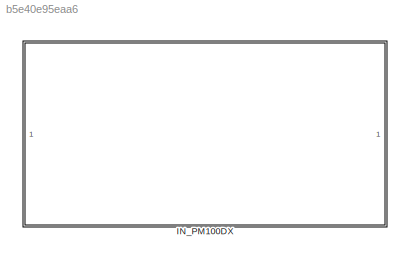
MODEL slx_b5e40e95eaa6
KIND library
CONFIG AbsTol = auto
CONFIG EnableMultiTasking = off
CONFIG FixedStep = auto
CONFIG MaxStep = auto
CONFIG MinStep = auto
CONFIG RelTol = 1e-3
CONFIG SampleTimeConstraint = Unconstrained
CONFIG SolverName = VariableStepAuto
CONFIG StartTime = 0.0
CONFIG StopTime = 10.0
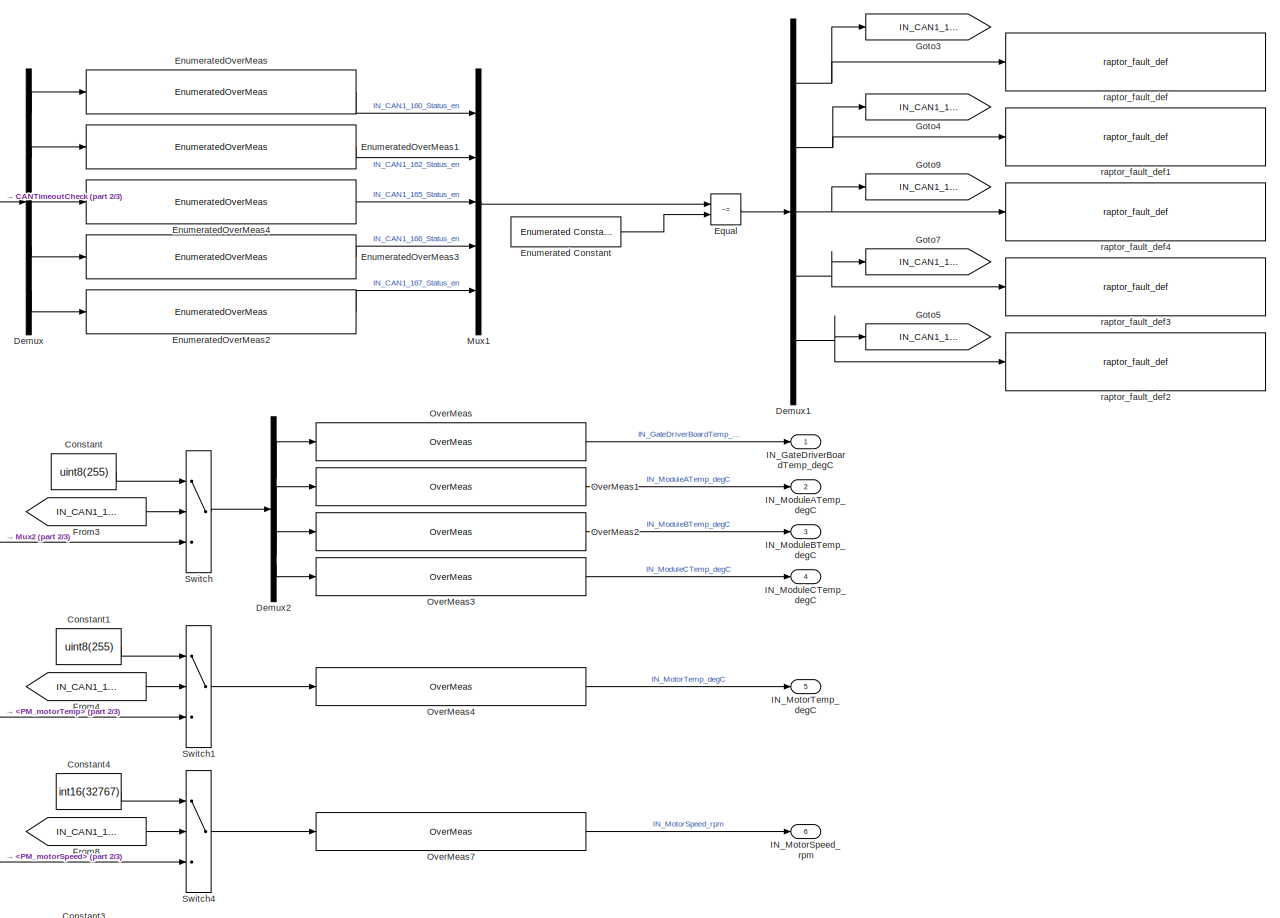
[diagram: IN_PM100DX - part 1/3, right side, full height]
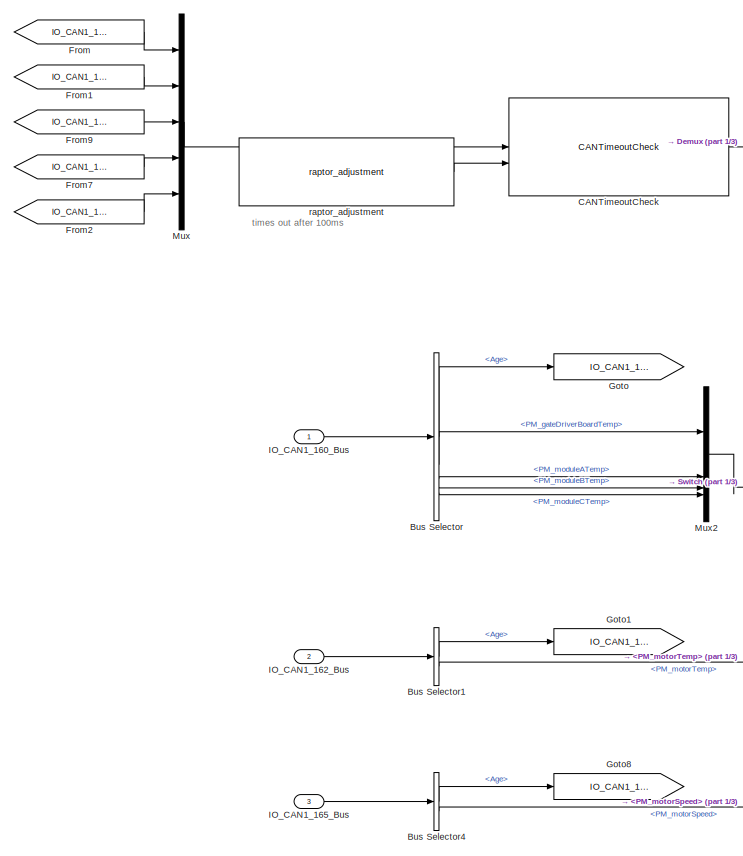
[diagram: IN_PM100DX - part 2/3, middle left region]
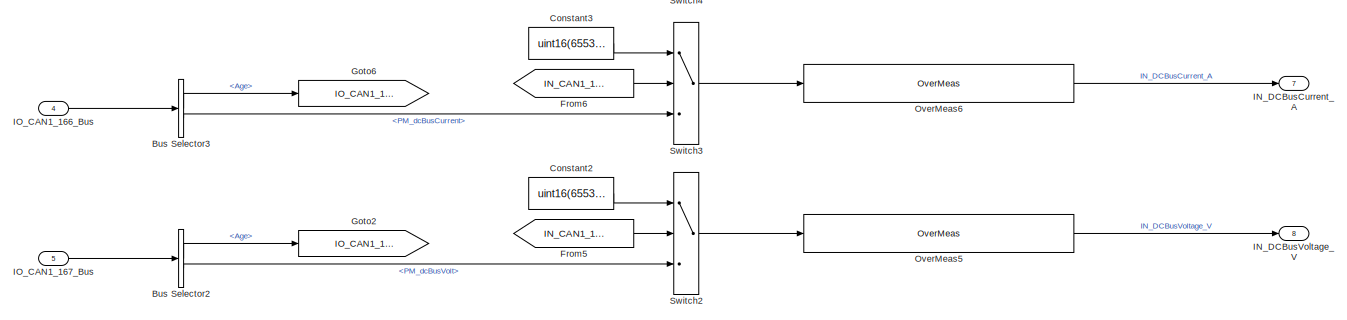
[diagram: IN_PM100DX - part 3/3, bottom center region]
BLOCK [SubSystem] IN_PM100DX
BLOCK [BusSelector] IN_PM100DX/Bus Selector
  OutputSignals = Age,PM_gateDriverBoardTemp,PM_moduleATemp,PM_moduleBTemp,PM_moduleCTemp
BLOCK [BusSelector] IN_PM100DX/Bus Selector1
  OutputSignals = Age,PM_motorTemp
BLOCK [BusSelector] IN_PM100DX/Bus Selector2
  OutputSignals = Age,PM_dcBusVolt
BLOCK [BusSelector] IN_PM100DX/Bus Selector3
  OutputSignals = Age,PM_dcBusCurrent
BLOCK [BusSelector] IN_PM100DX/Bus Selector4
  OutputSignals = Age,PM_motorSpeed
BLOCK [Reference] IN_PM100DX/CANTimeoutCheck  REF=Utilities/CANTimeoutCheck
  SourceBlock = Utilities/CANTimeoutCheck
BLOCK [Constant] IN_PM100DX/Constant
  Value = uint8(255)
BLOCK [Constant] IN_PM100DX/Constant1
  Value = uint8(255)
BLOCK [Constant] IN_PM100DX/Constant2
  Value = uint16(65536)
BLOCK [Constant] IN_PM100DX/Constant3
  Value = uint16(65536)
BLOCK [Constant] IN_PM100DX/Constant4
  Value = int16(32767)
BLOCK [Demux] IN_PM100DX/Demux
  Outputs = 5
BLOCK [Demux] IN_PM100DX/Demux1
  Outputs = 5
BLOCK [Demux] IN_PM100DX/Demux2
BLOCK [Reference] IN_PM100DX/Enumerated Constant  REF=simulink/Sources/Enumerated
Constant
  SourceBlock = simulink/Sources/Enumerated\nConstant
  SourceType = Enumerated Constant
BLOCK [Reference] IN_PM100DX/EnumeratedOverMeas  REF=Utilities/EnumeratedOverMeas
  SourceBlock = Utilities/EnumeratedOverMeas
BLOCK [Reference] IN_PM100DX/EnumeratedOverMeas1  REF=Utilities/EnumeratedOverMeas
  SourceBlock = Utilities/EnumeratedOverMeas
BLOCK [Reference] IN_PM100DX/EnumeratedOverMeas2  REF=Utilities/EnumeratedOverMeas
  SourceBlock = Utilities/EnumeratedOverMeas
BLOCK [Reference] IN_PM100DX/EnumeratedOverMeas3  REF=Utilities/EnumeratedOverMeas
  SourceBlock = Utilities/EnumeratedOverMeas
BLOCK [Reference] IN_PM100DX/EnumeratedOverMeas4  REF=Utilities/EnumeratedOverMeas
  SourceBlock = Utilities/EnumeratedOverMeas
BLOCK [RelationalOperator] IN_PM100DX/Equal
  InputSameDT = off
  Operator = ~=
  OutDataTypeStr = boolean
  RndMeth = Simplest
BLOCK [From] IN_PM100DX/From
  GotoTag = IO_CAN1_160_Age
BLOCK [From] IN_PM100DX/From1
  GotoTag = IO_CAN1_162_Age
BLOCK [From] IN_PM100DX/From2
  GotoTag = IO_CAN1_167_Age
BLOCK [From] IN_PM100DX/From3
  GotoTag = IN_CAN1_160_Fault
BLOCK [From] IN_PM100DX/From4
  GotoTag = IN_CAN1_162_Fault
BLOCK [From] IN_PM100DX/From5
  GotoTag = IN_CAN1_167_Fault
BLOCK [From] IN_PM100DX/From6
  GotoTag = IN_CAN1_166_Fault
BLOCK [From] IN_PM100DX/From7
  GotoTag = IO_CAN1_166_Age
BLOCK [From] IN_PM100DX/From8
  GotoTag = IN_CAN1_165_Fault
BLOCK [From] IN_PM100DX/From9
  GotoTag = IO_CAN1_165_Age
BLOCK [Goto] IN_PM100DX/Goto
  GotoTag = IO_CAN1_160_Age
BLOCK [Goto] IN_PM100DX/Goto1
  GotoTag = IO_CAN1_162_Age
BLOCK [Goto] IN_PM100DX/Goto2
  GotoTag = IO_CAN1_167_Age
BLOCK [Goto] IN_PM100DX/Goto3
  GotoTag = IN_CAN1_160_Fault
BLOCK [Goto] IN_PM100DX/Goto4
  GotoTag = IN_CAN1_162_Fault
BLOCK [Goto] IN_PM100DX/Goto5
  GotoTag = IN_CAN1_167_Fault
BLOCK [Goto] IN_PM100DX/Goto6
  GotoTag = IO_CAN1_166_Age
BLOCK [Goto] IN_PM100DX/Goto7
  GotoTag = IN_CAN1_166_Fault
BLOCK [Goto] IN_PM100DX/Goto8
  GotoTag = IO_CAN1_165_Age
BLOCK [Goto] IN_PM100DX/Goto9
  GotoTag = IN_CAN1_165_Fault
BLOCK [Outport] IN_PM100DX/IN_DCBusCurrent_A
  Port = 7
BLOCK [Outport] IN_PM100DX/IN_DCBusVoltage_V
  Port = 8
BLOCK [Outport] IN_PM100DX/IN_GateDriverBoardTemp_degC
BLOCK [Outport] IN_PM100DX/IN_ModuleATemp_degC
  Port = 2
BLOCK [Outport] IN_PM100DX/IN_ModuleBTemp_degC
  Port = 3
BLOCK [Outport] IN_PM100DX/IN_ModuleCTemp_degC
  Port = 4
BLOCK [Outport] IN_PM100DX/IN_MotorSpeed_rpm
  Port = 6
BLOCK [Outport] IN_PM100DX/IN_MotorTemp_degC
  Port = 5
BLOCK [Inport] IN_PM100DX/IO_CAN1_160_Bus
BLOCK [Inport] IN_PM100DX/IO_CAN1_162_Bus
  Port = 2
BLOCK [Inport] IN_PM100DX/IO_CAN1_165_Bus
  Port = 3
BLOCK [Inport] IN_PM100DX/IO_CAN1_166_Bus
  Port = 4
BLOCK [Inport] IN_PM100DX/IO_CAN1_167_Bus
  Port = 5
BLOCK [Mux] IN_PM100DX/Mux
  DisplayOption = bar
  Inputs = 5
BLOCK [Mux] IN_PM100DX/Mux1
  DisplayOption = bar
  Inputs = 5
BLOCK [Mux] IN_PM100DX/Mux2
  DisplayOption = bar
BLOCK [Reference] IN_PM100DX/OverMeas  REF=Utilities/OverMeas
  SourceBlock = Utilities/OverMeas
BLOCK [Reference] IN_PM100DX/OverMeas1  REF=Utilities/OverMeas
  SourceBlock = Utilities/OverMeas
BLOCK [Reference] IN_PM100DX/OverMeas2  REF=Utilities/OverMeas
  SourceBlock = Utilities/OverMeas
BLOCK [Reference] IN_PM100DX/OverMeas3  REF=Utilities/OverMeas
  SourceBlock = Utilities/OverMeas
BLOCK [Reference] IN_PM100DX/OverMeas4  REF=Utilities/OverMeas
  SourceBlock = Utilities/OverMeas
BLOCK [Reference] IN_PM100DX/OverMeas5  REF=Utilities/OverMeas
  SourceBlock = Utilities/OverMeas
BLOCK [Reference] IN_PM100DX/OverMeas6  REF=Utilities/OverMeas
  SourceBlock = Utilities/OverMeas
BLOCK [Reference] IN_PM100DX/OverMeas7  REF=Utilities/OverMeas
  SourceBlock = Utilities/OverMeas
BLOCK [Switch] IN_PM100DX/Switch
  Criteria = u2 ~= 0
  InputSameDT = off
  SaturateOnIntegerOverflow = off
BLOCK [Switch] IN_PM100DX/Switch1
  Criteria = u2 ~= 0
  InputSameDT = off
  SaturateOnIntegerOverflow = off
BLOCK [Switch] IN_PM100DX/Switch2
  Criteria = u2 ~= 0
  InputSameDT = off
  SaturateOnIntegerOverflow = off
BLOCK [Switch] IN_PM100DX/Switch3
  Criteria = u2 ~= 0
  InputSameDT = off
  SaturateOnIntegerOverflow = off
BLOCK [Switch] IN_PM100DX/Switch4
  Criteria = u2 ~= 0
  InputSameDT = off
  SaturateOnIntegerOverflow = off
BLOCK [Reference] IN_PM100DX/raptor_adjustment  REF=Raptor_lib/Data Storage/raptor_adjustment
  SourceBlock = Raptor_lib/Data Storage/raptor_adjustment
  SourceProductName = Raptor
  SourceType = Adjustment
BLOCK [Reference] IN_PM100DX/raptor_fault_def  REF=Raptor_lib/Faults/raptor_fault_def
  SourceBlock = Raptor_lib/Faults/raptor_fault_def
  SourceProductName = Raptor
  SourceType = Fault Definition
BLOCK [Reference] IN_PM100DX/raptor_fault_def1  REF=Raptor_lib/Faults/raptor_fault_def
  SourceBlock = Raptor_lib/Faults/raptor_fault_def
  SourceProductName = Raptor
  SourceType = Fault Definition
BLOCK [Reference] IN_PM100DX/raptor_fault_def2  REF=Raptor_lib/Faults/raptor_fault_def
  SourceBlock = Raptor_lib/Faults/raptor_fault_def
  SourceProductName = Raptor
  SourceType = Fault Definition
BLOCK [Reference] IN_PM100DX/raptor_fault_def3  REF=Raptor_lib/Faults/raptor_fault_def
  SourceBlock = Raptor_lib/Faults/raptor_fault_def
  SourceProductName = Raptor
  SourceType = Fault Definition
BLOCK [Reference] IN_PM100DX/raptor_fault_def4  REF=Raptor_lib/Faults/raptor_fault_def
  SourceBlock = Raptor_lib/Faults/raptor_fault_def
  SourceProductName = Raptor
  SourceType = Fault Definition
ANNOTATION IN_PM100DX: times out after 100ms
LINE IN_PM100DX/Bus Selector1:1 -> IN_PM100DX/Goto1:1
LINE IN_PM100DX/Bus Selector1:2 -> IN_PM100DX/Switch1:3
LINE IN_PM100DX/Bus Selector2:1 -> IN_PM100DX/Goto2:1
LINE IN_PM100DX/Bus Selector2:2 -> IN_PM100DX/Switch2:3
LINE IN_PM100DX/Bus Selector3:1 -> IN_PM100DX/Goto6:1
LINE IN_PM100DX/Bus Selector3:2 -> IN_PM100DX/Switch3:3
LINE IN_PM100DX/Bus Selector4:1 -> IN_PM100DX/Goto8:1
LINE IN_PM100DX/Bus Selector4:2 -> IN_PM100DX/Switch4:3
LINE IN_PM100DX/Bus Selector:1 -> IN_PM100DX/Goto:1
LINE IN_PM100DX/Bus Selector:2 -> IN_PM100DX/Mux2:1
LINE IN_PM100DX/Bus Selector:3 -> IN_PM100DX/Mux2:2
LINE IN_PM100DX/Bus Selector:4 -> IN_PM100DX/Mux2:3
LINE IN_PM100DX/Bus Selector:5 -> IN_PM100DX/Mux2:4
LINE IN_PM100DX/CANTimeoutCheck:1 -> IN_PM100DX/Demux:1
LINE IN_PM100DX/Constant1:1 -> IN_PM100DX/Switch1:1
LINE IN_PM100DX/Constant2:1 -> IN_PM100DX/Switch2:1
LINE IN_PM100DX/Constant3:1 -> IN_PM100DX/Switch3:1
LINE IN_PM100DX/Constant4:1 -> IN_PM100DX/Switch4:1
LINE IN_PM100DX/Constant:1 -> IN_PM100DX/Switch:1
NET IN_PM100DX/Demux1:1 -> IN_PM100DX/Goto3:1, IN_PM100DX/raptor_fault_def:1
NET IN_PM100DX/Demux1:2 -> IN_PM100DX/Goto4:1, IN_PM100DX/raptor_fault_def1:1
NET IN_PM100DX/Demux1:3 -> IN_PM100DX/Goto9:1, IN_PM100DX/raptor_fault_def4:1
NET IN_PM100DX/Demux1:4 -> IN_PM100DX/Goto7:1, IN_PM100DX/raptor_fault_def3:1
NET IN_PM100DX/Demux1:5 -> IN_PM100DX/Goto5:1, IN_PM100DX/raptor_fault_def2:1
LINE IN_PM100DX/Demux2:1 -> IN_PM100DX/OverMeas:1
LINE IN_PM100DX/Demux2:2 -> IN_PM100DX/OverMeas1:1
LINE IN_PM100DX/Demux2:3 -> IN_PM100DX/OverMeas2:1
LINE IN_PM100DX/Demux2:4 -> IN_PM100DX/OverMeas3:1
LINE IN_PM100DX/Demux:1 -> IN_PM100DX/EnumeratedOverMeas:1
LINE IN_PM100DX/Demux:2 -> IN_PM100DX/EnumeratedOverMeas1:1
LINE IN_PM100DX/Demux:3 -> IN_PM100DX/EnumeratedOverMeas4:1
LINE IN_PM100DX/Demux:4 -> IN_PM100DX/EnumeratedOverMeas3:1
LINE IN_PM100DX/Demux:5 -> IN_PM100DX/EnumeratedOverMeas2:1
LINE IN_PM100DX/Enumerated Constant:1 -> IN_PM100DX/Equal:2
LINE IN_PM100DX/EnumeratedOverMeas1:1 -> IN_PM100DX/Mux1:2
LINE IN_PM100DX/EnumeratedOverMeas2:1 -> IN_PM100DX/Mux1:5
LINE IN_PM100DX/EnumeratedOverMeas3:1 -> IN_PM100DX/Mux1:4
LINE IN_PM100DX/EnumeratedOverMeas4:1 -> IN_PM100DX/Mux1:3
LINE IN_PM100DX/EnumeratedOverMeas:1 -> IN_PM100DX/Mux1:1
LINE IN_PM100DX/Equal:1 -> IN_PM100DX/Demux1:1
LINE IN_PM100DX/From1:1 -> IN_PM100DX/Mux:2
LINE IN_PM100DX/From2:1 -> IN_PM100DX/Mux:5
LINE IN_PM100DX/From3:1 -> IN_PM100DX/Switch:2
LINE IN_PM100DX/From4:1 -> IN_PM100DX/Switch1:2
LINE IN_PM100DX/From5:1 -> IN_PM100DX/Switch2:2
LINE IN_PM100DX/From6:1 -> IN_PM100DX/Switch3:2
LINE IN_PM100DX/From7:1 -> IN_PM100DX/Mux:4
LINE IN_PM100DX/From8:1 -> IN_PM100DX/Switch4:2
LINE IN_PM100DX/From9:1 -> IN_PM100DX/Mux:3
LINE IN_PM100DX/From:1 -> IN_PM100DX/Mux:1
LINE IN_PM100DX/IO_CAN1_160_Bus:1 -> IN_PM100DX/Bus Selector:1
LINE IN_PM100DX/IO_CAN1_162_Bus:1 -> IN_PM100DX/Bus Selector1:1
LINE IN_PM100DX/IO_CAN1_165_Bus:1 -> IN_PM100DX/Bus Selector4:1
LINE IN_PM100DX/IO_CAN1_166_Bus:1 -> IN_PM100DX/Bus Selector3:1
LINE IN_PM100DX/IO_CAN1_167_Bus:1 -> IN_PM100DX/Bus Selector2:1
LINE IN_PM100DX/Mux1:1 -> IN_PM100DX/Equal:1
LINE IN_PM100DX/Mux2:1 -> IN_PM100DX/Switch:3
LINE IN_PM100DX/Mux:1 -> IN_PM100DX/CANTimeoutCheck:1
LINE IN_PM100DX/OverMeas1:1 -> IN_PM100DX/IN_ModuleATemp_degC:1
LINE IN_PM100DX/OverMeas2:1 -> IN_PM100DX/IN_ModuleBTemp_degC:1
LINE IN_PM100DX/OverMeas3:1 -> IN_PM100DX/IN_ModuleCTemp_degC:1
LINE IN_PM100DX/OverMeas4:1 -> IN_PM100DX/IN_MotorTemp_degC:1
LINE IN_PM100DX/OverMeas5:1 -> IN_PM100DX/IN_DCBusVoltage_V:1
LINE IN_PM100DX/OverMeas6:1 -> IN_PM100DX/IN_DCBusCurrent_A:1
LINE IN_PM100DX/OverMeas7:1 -> IN_PM100DX/IN_MotorSpeed_rpm:1
LINE IN_PM100DX/OverMeas:1 -> IN_PM100DX/IN_GateDriverBoardTemp_degC:1
LINE IN_PM100DX/Switch1:1 -> IN_PM100DX/OverMeas4:1
LINE IN_PM100DX/Switch2:1 -> IN_PM100DX/OverMeas5:1
LINE IN_PM100DX/Switch3:1 -> IN_PM100DX/OverMeas6:1
LINE IN_PM100DX/Switch4:1 -> IN_PM100DX/OverMeas7:1
LINE IN_PM100DX/Switch:1 -> IN_PM100DX/Demux2:1
LINE IN_PM100DX/raptor_adjustment:1 -> IN_PM100DX/CANTimeoutCheck:2
note: NET lines group one-source signal fan-out (src -> all destinations, sorted); 1:1 wires keep LINE
